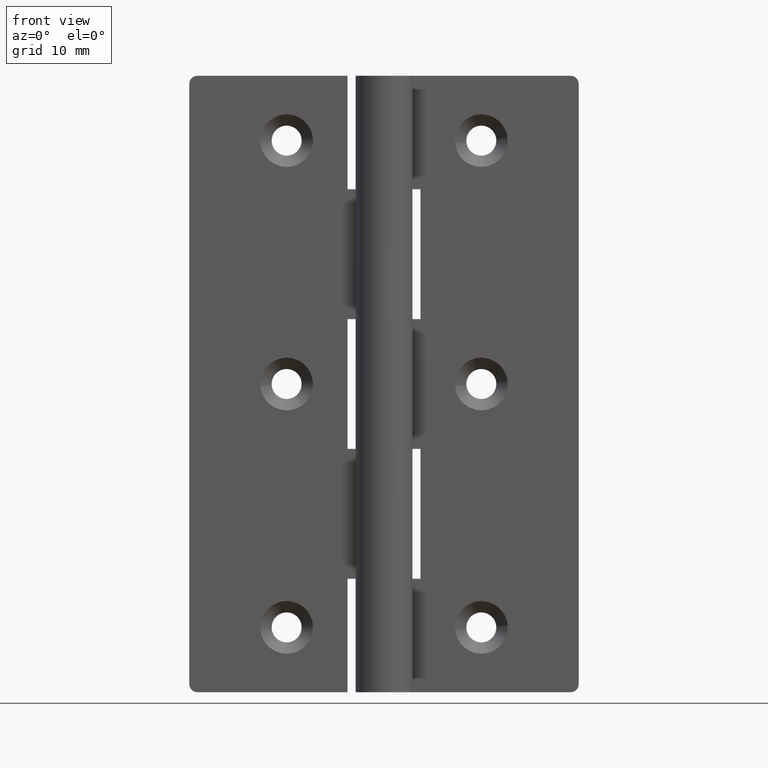
[diagram: clean part render]
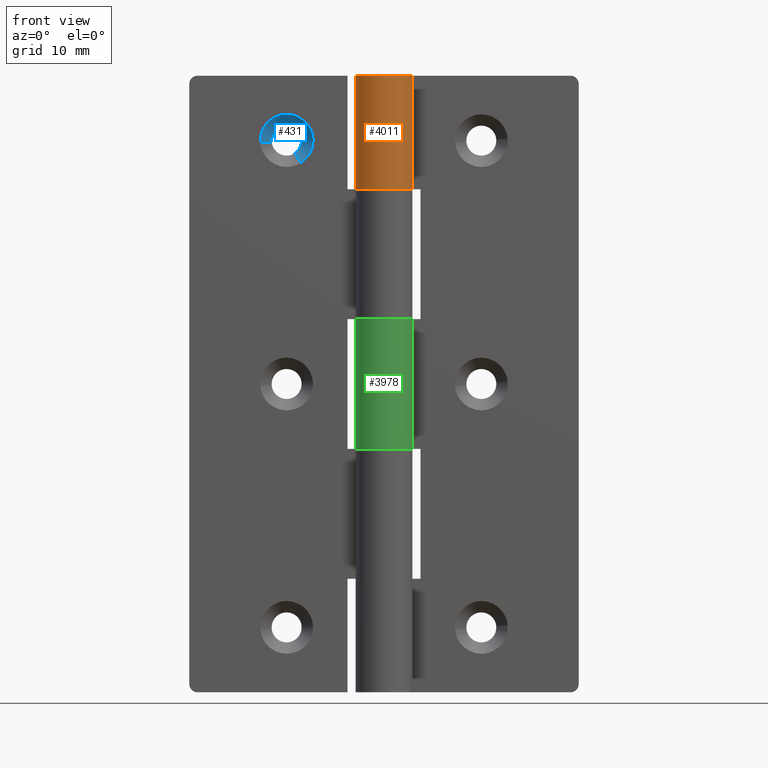
[diagram: same view with three faces highlighted in distinct colors, each labeled with its STEP entity id]
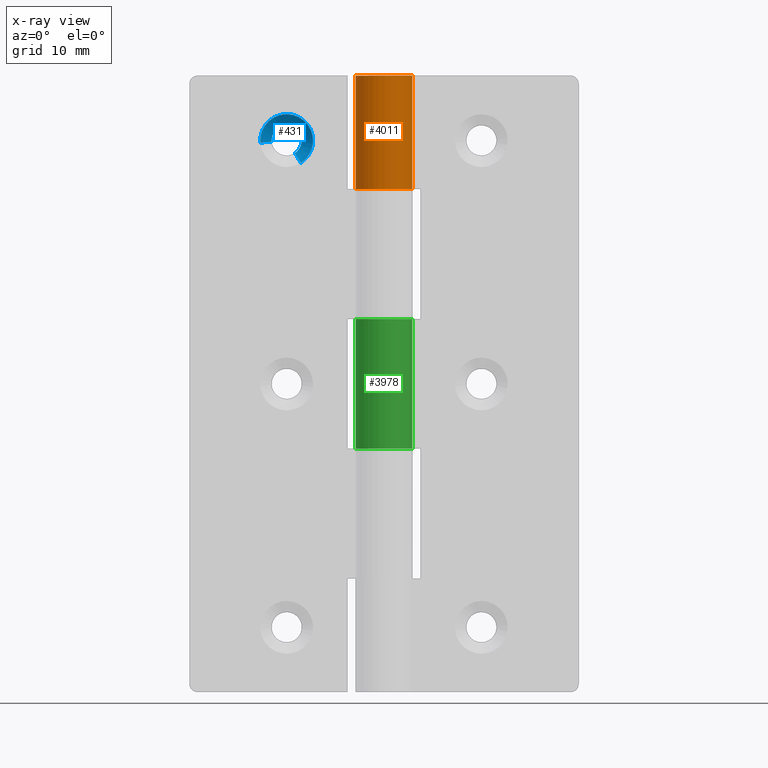
[diagram: x-ray of the same camera — body ghosted, the three highlighted faces saturated]
A machine part, front view with three faces highlighted in distinct colors.
The next image is the same camera in x-ray (body ghosted, the three faces saturated) — at least one of them is partly hidden behind the body in this view.
Their STEP definitions:

[orange] entity #4011 — the highlighted face is a freeform B-spline surface patch.
#3297=CARTESIAN_POINT('',(2.906458325866725,1.950000000000000,62.000008000000101));
#3298=VERTEX_POINT('',#3297);
#3299=CARTESIAN_POINT('',(0.0,3.499999999999950,62.000008000000101));
#3300=VERTEX_POINT('',#3299);
#3301=CARTESIAN_POINT('',(2.906458325866724,1.950000000000000,62.000008000000101));
#3302=CARTESIAN_POINT('',(4.428995672699893,-0.319328896485282,62.000008000000115));
#3303=CARTESIAN_POINT('',(2.596662639363707,-2.346772919848170,62.000008000000101));
#3304=CARTESIAN_POINT('',(0.764329606027518,-4.374216943211061,62.000008000000115));
#3305=CARTESIAN_POINT('',(-1.646966909200061,-3.088284313336452,62.000008000000101));
#3306=CARTESIAN_POINT('',(-4.058263424427639,-1.802351683461843,62.000008000000115));
#3307=CARTESIAN_POINT('',(-3.395511382448716,0.848824158269078,62.000008000000101));
#3308=CARTESIAN_POINT('',(-2.732759340469793,3.500000000000001,62.000008000000115));
#3309=CARTESIAN_POINT('',(0.0,3.500000000000000,62.000008000000101));
#3317=(BOUNDED_CURVE()B_SPLINE_CURVE(2,(#3301,#3302,#3303,#3304,#3305,#3306,#3307,#3308,#3309),.UNSPECIFIED.,.F.,.U.)B_SPLINE_CURVE_WITH_KNOTS((3,2,2,2,3),(0.0,0.250000000000000,0.500000000000000,0.750000000000000,1.0),.UNSPECIFIED.)CURVE()GEOMETRIC_REPRESENTATION_ITEM()RATIONAL_B_SPLINE_CURVE((1.0,0.788200858942973,1.0,0.788200858942973,1.0,0.788200858942973,1.0,0.788200858942973,1.0))REPRESENTATION_ITEM(''));
#3318=EDGE_CURVE('',#3298,#3300,#3317,.T.);
#3673=CARTESIAN_POINT('',(0.0,3.500000000000000,76.000008000000093));
#3674=VERTEX_POINT('',#3673);
#3680=CARTESIAN_POINT('',(2.906458325866725,1.950000000000000,76.000008000000093));
#3681=VERTEX_POINT('',#3680);
#3682=CARTESIAN_POINT('',(2.906458325866724,1.950000000000000,76.000008000000093));
#3683=CARTESIAN_POINT('',(4.428995672699894,-0.319328896485281,76.000008000000093));
#3684=CARTESIAN_POINT('',(2.596662639363708,-2.346772919848170,76.000008000000093));
#3685=CARTESIAN_POINT('',(0.764329606027520,-4.374216943211062,76.000008000000093));
#3686=CARTESIAN_POINT('',(-1.646966909200061,-3.088284313336452,76.000008000000093));
#3687=CARTESIAN_POINT('',(-4.058263424427635,-1.802351683461845,76.000008000000093));
#3688=CARTESIAN_POINT('',(-3.395511382448717,0.848824158269075,76.000008000000093));
#3689=CARTESIAN_POINT('',(-2.732759340469795,3.500000000000000,76.000008000000093));
#3690=CARTESIAN_POINT('',(0.0,3.500000000000000,76.000008000000093));
#3698=(BOUNDED_CURVE()B_SPLINE_CURVE(2,(#3682,#3683,#3684,#3685,#3686,#3687,#3688,#3689,#3690),.UNSPECIFIED.,.F.,.U.)B_SPLINE_CURVE_WITH_KNOTS((3,2,2,2,3),(0.0,0.250000000000000,0.500000000000000,0.750000000000000,1.0),.UNSPECIFIED.)CURVE()GEOMETRIC_REPRESENTATION_ITEM()RATIONAL_B_SPLINE_CURVE((1.0,0.788200858942973,1.0,0.788200858942973,1.0,0.788200858942973,1.0,0.788200858942973,1.0))REPRESENTATION_ITEM(''));
#3699=EDGE_CURVE('',#3681,#3674,#3698,.T.);
#3931=CARTESIAN_POINT('',(2.906458325866725,1.950000000000000,62.000008000000101));
#3932=CARTESIAN_POINT('',(2.906458325866725,1.950000000000000,76.000008000000093));
#3933=QUASI_UNIFORM_CURVE('',1,(#3931,#3932),.UNSPECIFIED.,.F.,.U.);
#3934=EDGE_CURVE('',#3298,#3681,#3933,.T.);
#3979=CARTESIAN_POINT('',(2.849404314247117,2.032460344988288,61.650008000000092));
#3980=CARTESIAN_POINT('',(2.849404314247117,2.032460344988288,76.358758000000108));
#3981=CARTESIAN_POINT('',(5.419869493007912,-1.571198928386221,61.650008000000085));
#3982=CARTESIAN_POINT('',(5.419869493007912,-1.571198928386221,76.358758000000108));
#3983=CARTESIAN_POINT('',(1.320557256320388,-3.241315864395131,61.650008000000092));
#3984=CARTESIAN_POINT('',(1.320557256320388,-3.241315864395131,76.358758000000108));
#3985=CARTESIAN_POINT('',(-2.778754980367134,-4.911432800404040,61.650008000000085));
#3986=CARTESIAN_POINT('',(-2.778754980367134,-4.911432800404040,76.358758000000108));
#3987=CARTESIAN_POINT('',(-3.458487237310264,-0.537462584150751,61.650008000000092));
#3988=CARTESIAN_POINT('',(-3.458487237310264,-0.537462584150751,76.358758000000108));
#3989=CARTESIAN_POINT('',(-4.138219494253393,3.836507632102540,61.650008000000085));
#3990=CARTESIAN_POINT('',(-4.138219494253393,3.836507632102540,76.358758000000108));
#3991=CARTESIAN_POINT('',(0.274606835047458,3.489210668065946,61.650008000000092));
#3992=CARTESIAN_POINT('',(0.274606835047458,3.489210668065946,76.358758000000108));
#4000=(BOUNDED_SURFACE()B_SPLINE_SURFACE(1,2,((#3979,#3981,#3983,#3985,#3987,#3989,#3991),(#3980,#3982,#3984,#3986,#3988,#3990,#3992)),.UNSPECIFIED.,.F.,.F.,.U.)B_SPLINE_SURFACE_WITH_KNOTS((2,2),(3,2,2,3),(0.0,14.708750000000020),(0.0,6.777915536387797,13.555831072775600,20.333746609163391),.UNSPECIFIED.)GEOMETRIC_REPRESENTATION_ITEM()RATIONAL_B_SPLINE_SURFACE(((1.0,0.620235491268260,1.0,0.620235491268260,1.0,0.620235491268260,1.0),(1.0,0.620235491268260,1.0,0.620235491268260,1.0,0.620235491268260,1.0)))REPRESENTATION_ITEM('')SURFACE());
#4001=ORIENTED_EDGE('',*,*,#3318,.F.);
#4002=ORIENTED_EDGE('',*,*,#3934,.T.);
#4003=ORIENTED_EDGE('',*,*,#3699,.T.);
#4004=CARTESIAN_POINT('',(0.0,3.499999999999950,62.000008000000101));
#4005=CARTESIAN_POINT('',(0.0,3.500000000000000,76.000008000000093));
#4006=QUASI_UNIFORM_CURVE('',1,(#4004,#4005),.UNSPECIFIED.,.F.,.U.);
#4007=EDGE_CURVE('',#3300,#3674,#4006,.T.);
#4008=ORIENTED_EDGE('',*,*,#4007,.F.);
#4009=EDGE_LOOP('',(#4001,#4002,#4003,#4008));
#4010=FACE_OUTER_BOUND('',#4009,.T.);
#4011=ADVANCED_FACE('',(#4010),#4000,.T.);

[blue] entity #431 — the highlighted face is a freeform B-spline surface patch.
#295=CARTESIAN_POINT('',(-11.023800809895137,3.434999975562094,66.469890311311190));
#296=CARTESIAN_POINT('',(-10.105093862387937,3.434999975562094,67.056015800043198));
#297=CARTESIAN_POINT('',(-10.190595039274370,3.434999975562094,68.142411258746137));
#298=CARTESIAN_POINT('',(-10.332998298020414,3.434999975562094,69.951816219471780));
#299=CARTESIAN_POINT('',(-12.142403258746040,3.434999975562094,69.809412960725723));
#300=CARTESIAN_POINT('',(-13.951808219471664,3.434999975562094,69.667009701979680));
#301=CARTESIAN_POINT('',(-13.809404960725630,3.434999975562094,67.857604741254050));
#302=CARTESIAN_POINT('',(-10.232689524084954,1.964125000610948,65.229883779437770));
#303=CARTESIAN_POINT('',(-8.569462972492545,1.964125000610948,66.291005041304032));
#304=CARTESIAN_POINT('',(-8.724254256019661,1.964125000610948,68.257814781174829));
#305=CARTESIAN_POINT('',(-8.982061037194395,1.964125000610948,71.533560525155167));
#306=CARTESIAN_POINT('',(-12.257806781174731,1.964125000610948,71.275753743980431));
#307=CARTESIAN_POINT('',(-15.533552525155070,1.964125000610948,71.017946962805681));
#308=CARTESIAN_POINT('',(-15.275745743980339,1.964125000610948,67.742201218825358));
#316=(BOUNDED_SURFACE()B_SPLINE_SURFACE(2,1,((#295,#302),(#296,#303),(#297,#304),(#298,#305),(#299,#306),(#300,#307),(#301,#308)),.UNSPECIFIED.,.F.,.F.,.U.)B_SPLINE_SURFACE_WITH_KNOTS((3,2,2,3),(2,2),(0.0,3.702066850794523,9.146282807845294,14.590498764896060),(0.0,2.080131355843313),.UNSPECIFIED.)GEOMETRIC_REPRESENTATION_ITEM()RATIONAL_B_SPLINE_SURFACE(((0.872532871172386,0.872532871172386),(0.800832611206852,0.800832611206852),(1.0,1.0),(0.707106781186548,0.707106781186548),(1.0,1.0),(0.707106781186548,0.707106781186548),(1.0,1.0)))REPRESENTATION_ITEM('')SURFACE());
#317=CARTESIAN_POINT('',(-10.162932376252440,3.399999976158140,68.218371334327315));
#318=VERTEX_POINT('',#317);
#319=CARTESIAN_POINT('',(-11.004976031722370,3.399999976134143,66.440383909829052));
#320=VERTEX_POINT('',#319);
#321=CARTESIAN_POINT('',(-10.162932376252442,3.399999976158140,68.218371334327315));
#322=CARTESIAN_POINT('',(-10.150000000000000,3.399999976158140,68.109572621570592));
#323=CARTESIAN_POINT('',(-10.150000000000000,3.399999976158140,68.000008000000093));
#324=CARTESIAN_POINT('',(-10.150000000000000,3.399999976158139,66.985849736973350));
#325=CARTESIAN_POINT('',(-11.004976031722371,3.399999976134143,66.440383909829052));
#333=(BOUNDED_CURVE()B_SPLINE_CURVE(2,(#321,#322,#323,#324,#325),.UNSPECIFIED.,.F.,.U.)B_SPLINE_CURVE_WITH_KNOTS((3,2,3),(0.229562473476597,0.250000000000000,0.407950112551356),.UNSPECIFIED.)CURVE()GEOMETRIC_REPRESENTATION_ITEM()RATIONAL_B_SPLINE_CURVE((0.956026754111352,0.976055948287901,1.0,0.814949932491545,0.863729296907862))REPRESENTATION_ITEM(''));
#334=EDGE_CURVE('',#318,#320,#333,.T.);
#335=ORIENTED_EDGE('',*,*,#334,.T.);
#336=CARTESIAN_POINT('',(-10.251984921229161,1.999999999995865,65.260127841230982));
#337=VERTEX_POINT('',#336);
#338=CARTESIAN_POINT('',(-11.004976031722370,3.399999976134143,66.440383909829052));
#339=CARTESIAN_POINT('',(-10.251984921229161,1.999999999995865,65.260127841230982));
#340=QUASI_UNIFORM_CURVE('',1,(#338,#339),.UNSPECIFIED.,.F.,.U.);
#341=EDGE_CURVE('',#320,#337,#340,.T.);
#342=ORIENTED_EDGE('',*,*,#341,.T.);
#343=CARTESIAN_POINT('',(-12.0,2.0,71.250008000000108));
#344=VERTEX_POINT('',#343);
#345=CARTESIAN_POINT('',(-12.0,2.0,71.250008000000108));
#346=CARTESIAN_POINT('',(-8.750000000000000,2.0,71.250008000000108));
#347=CARTESIAN_POINT('',(-8.750000000000000,2.0,68.000008000000093));
#348=CARTESIAN_POINT('',(-8.750000000000000,2.000000000000000,66.218378618057898));
#349=CARTESIAN_POINT('',(-10.251984921229155,1.999999999995865,65.260127841230982));
#357=(BOUNDED_CURVE()B_SPLINE_CURVE(2,(#345,#346,#347,#348,#349),.UNSPECIFIED.,.F.,.U.)B_SPLINE_CURVE_WITH_KNOTS((3,2,3),(0.0,0.250000000000000,0.407950112619940),.UNSPECIFIED.)CURVE()GEOMETRIC_REPRESENTATION_ITEM()RATIONAL_B_SPLINE_CURVE((1.0,0.707106781186547,1.0,0.814949932411194,0.863729296950223))REPRESENTATION_ITEM(''));
#358=EDGE_CURVE('',#344,#337,#357,.T.);
#359=ORIENTED_EDGE('',*,*,#358,.F.);
#360=CARTESIAN_POINT('',(-15.239981334647011,1.999999999963527,67.745015938601981));
#361=VERTEX_POINT('',#360);
#362=CARTESIAN_POINT('',(-15.239981334647009,1.999999999963527,67.745015938601981));
#363=CARTESIAN_POINT('',(-15.250000000000000,2.000000000000000,67.872315151944107));
#364=CARTESIAN_POINT('',(-15.250000000000000,2.0,68.000008000000093));
#365=CARTESIAN_POINT('',(-15.250000000000002,2.0,71.250008000000108));
#366=CARTESIAN_POINT('',(-12.0,2.0,71.250008000000108));
#374=(BOUNDED_CURVE()B_SPLINE_CURVE(2,(#362,#363,#364,#365,#366),.UNSPECIFIED.,.F.,.U.)B_SPLINE_CURVE_WITH_KNOTS((3,2,3),(0.736331300603164,0.750000000000000,1.0),.UNSPECIFIED.)CURVE()GEOMETRIC_REPRESENTATION_ITEM()RATIONAL_B_SPLINE_CURVE((0.969723356110036,0.983986122546669,1.0,0.707106781186547,1.0))REPRESENTATION_ITEM(''));
#375=EDGE_CURVE('',#361,#344,#374,.T.);
#376=ORIENTED_EDGE('',*,*,#375,.F.);
#377=CARTESIAN_POINT('',(-13.844297067456930,3.399999976032066,67.854858671940150));
#378=VERTEX_POINT('',#377);
#379=CARTESIAN_POINT('',(-13.844297067456930,3.399999976032066,67.854858671940150));
#380=CARTESIAN_POINT('',(-15.239981334647011,1.999999999963527,67.745015938601981));
#381=QUASI_UNIFORM_CURVE('',1,(#379,#380),.UNSPECIFIED.,.F.,.U.);
#382=EDGE_CURVE('',#378,#361,#381,.T.);
#383=ORIENTED_EDGE('',*,*,#382,.F.);
#384=CARTESIAN_POINT('',(-13.846549377052710,3.399999976158140,67.887068201407018));
#385=VERTEX_POINT('',#384);
#386=CARTESIAN_POINT('',(-13.844297067456930,3.399999976032066,67.854858671940150));
#387=CARTESIAN_POINT('',(-13.845563766299719,3.399999976158140,67.870953608169884));
#388=CARTESIAN_POINT('',(-13.846549377052707,3.399999976158140,67.887068201407018));
#396=(BOUNDED_CURVE()B_SPLINE_CURVE(2,(#386,#387,#388),.UNSPECIFIED.,.F.,.U.)B_SPLINE_CURVE_WITH_KNOTS((3,3),(0.736331300455507,0.739332962157198),.UNSPECIFIED.)CURVE()GEOMETRIC_REPRESENTATION_ITEM()RATIONAL_B_SPLINE_CURVE((0.969723355801887,0.972855475286945,0.976072041491524))REPRESENTATION_ITEM(''));
#397=EDGE_CURVE('',#378,#385,#396,.T.);
#398=ORIENTED_EDGE('',*,*,#397,.T.);
#399=CARTESIAN_POINT('',(-12.0,3.399999976158140,69.850008000000102));
#400=VERTEX_POINT('',#399);
#401=CARTESIAN_POINT('',(-13.846549377052712,3.399999976158140,67.887068201407018));
#402=CARTESIAN_POINT('',(-13.850000000000005,3.399999976158140,67.943485387442834));
#403=CARTESIAN_POINT('',(-13.850000000000000,3.399999976158140,68.000008000000093));
#404=CARTESIAN_POINT('',(-13.850000000000000,3.399999976158140,69.850008000000102));
#405=CARTESIAN_POINT('',(-12.0,3.399999976158140,69.850008000000102));
#413=(BOUNDED_CURVE()B_SPLINE_CURVE(2,(#401,#402,#403,#404,#405),.UNSPECIFIED.,.F.,.U.)B_SPLINE_CURVE_WITH_KNOTS((3,2,3),(0.739332962157199,0.750000000000000,1.0),.UNSPECIFIED.)CURVE()GEOMETRIC_REPRESENTATION_ITEM()RATIONAL_B_SPLINE_CURVE((0.976072041491525,0.987502787804068,1.0,0.707106781186548,1.0))REPRESENTATION_ITEM(''));
#414=EDGE_CURVE('',#385,#400,#413,.T.);
#415=ORIENTED_EDGE('',*,*,#414,.T.);
#416=CARTESIAN_POINT('',(-12.0,3.399999976158140,69.850008000000102));
#417=CARTESIAN_POINT('',(-10.356877127372275,3.399999976158140,69.850008000000088));
#418=CARTESIAN_POINT('',(-10.162932376252442,3.399999976158140,68.218371334327315));
#426=(BOUNDED_CURVE()B_SPLINE_CURVE(2,(#416,#417,#418),.UNSPECIFIED.,.F.,.U.)B_SPLINE_CURVE_WITH_KNOTS((3,3),(0.0,0.229562473476597),.UNSPECIFIED.)CURVE()GEOMETRIC_REPRESENTATION_ITEM()RATIONAL_B_SPLINE_CURVE((1.0,0.731050832898647,0.956026754111352))REPRESENTATION_ITEM(''));
#427=EDGE_CURVE('',#400,#318,#426,.T.);
#428=ORIENTED_EDGE('',*,*,#427,.T.);
#429=EDGE_LOOP('',(#335,#342,#359,#376,#383,#398,#415,#428));
#430=FACE_OUTER_BOUND('',#429,.T.);
#431=ADVANCED_FACE('',(#430),#316,.F.);

[green] entity #3978 — the highlighted face is a freeform B-spline surface patch.
#3228=CARTESIAN_POINT('',(0.0,3.499999999999950,46.000008000000101));
#3229=VERTEX_POINT('',#3228);
#3235=CARTESIAN_POINT('',(2.906458325866725,1.950000000000000,46.000008000000200));
#3236=VERTEX_POINT('',#3235);
#3237=CARTESIAN_POINT('',(0.0,3.499999999999950,46.000008000000101));
#3238=CARTESIAN_POINT('',(-2.732759340469792,3.500000000000000,46.000008000000200));
#3239=CARTESIAN_POINT('',(-3.395511382448716,0.848824158269080,46.000008000000200));
#3240=CARTESIAN_POINT('',(-4.058263424427640,-1.802351683461841,46.000008000000200));
#3241=CARTESIAN_POINT('',(-1.646966909200063,-3.088284313336451,46.000008000000200));
#3242=CARTESIAN_POINT('',(0.764329606027517,-4.374216943211062,46.000008000000200));
#3243=CARTESIAN_POINT('',(2.596662639363706,-2.346772919848171,46.000008000000200));
#3244=CARTESIAN_POINT('',(4.428995672699894,-0.319328896485283,46.000008000000200));
#3245=CARTESIAN_POINT('',(2.906458325866725,1.949999999999999,46.000008000000200));
#3253=(BOUNDED_CURVE()B_SPLINE_CURVE(2,(#3237,#3238,#3239,#3240,#3241,#3242,#3243,#3244,#3245),.UNSPECIFIED.,.F.,.U.)B_SPLINE_CURVE_WITH_KNOTS((3,2,2,2,3),(0.0,0.250000000000000,0.500000000000000,0.750000000000000,1.0),.UNSPECIFIED.)CURVE()GEOMETRIC_REPRESENTATION_ITEM()RATIONAL_B_SPLINE_CURVE((1.0,0.788200858942973,1.0,0.788200858942973,1.0,0.788200858942973,1.0,0.788200858942973,1.0))REPRESENTATION_ITEM(''));
#3254=EDGE_CURVE('',#3229,#3236,#3253,.T.);
#3473=CARTESIAN_POINT('',(2.906458325866725,1.950000000000000,30.000008000000150));
#3474=VERTEX_POINT('',#3473);
#3475=CARTESIAN_POINT('',(0.0,3.499999999999950,30.000008000000101));
#3476=VERTEX_POINT('',#3475);
#3477=CARTESIAN_POINT('',(2.906458325866724,1.950000000000000,30.000008000000150));
#3478=CARTESIAN_POINT('',(4.428995672699893,-0.319328896485282,30.000008000000157));
#3479=CARTESIAN_POINT('',(2.596662639363707,-2.346772919848170,30.000008000000150));
#3480=CARTESIAN_POINT('',(0.764329606027518,-4.374216943211061,30.000008000000157));
#3481=CARTESIAN_POINT('',(-1.646966909200061,-3.088284313336452,30.000008000000150));
#3482=CARTESIAN_POINT('',(-4.058263424427639,-1.802351683461843,30.000008000000157));
#3483=CARTESIAN_POINT('',(-3.395511382448716,0.848824158269078,30.000008000000150));
#3484=CARTESIAN_POINT('',(-2.732759340469793,3.500000000000001,30.000008000000157));
#3485=CARTESIAN_POINT('',(0.0,3.499999999999950,30.000008000000101));
#3493=(BOUNDED_CURVE()B_SPLINE_CURVE(2,(#3477,#3478,#3479,#3480,#3481,#3482,#3483,#3484,#3485),.UNSPECIFIED.,.F.,.U.)B_SPLINE_CURVE_WITH_KNOTS((3,2,2,2,3),(0.0,0.250000000000000,0.500000000000000,0.750000000000000,1.0),.UNSPECIFIED.)CURVE()GEOMETRIC_REPRESENTATION_ITEM()RATIONAL_B_SPLINE_CURVE((1.0,0.788200858942973,1.0,0.788200858942973,1.0,0.788200858942973,1.0,0.788200858942973,1.0))REPRESENTATION_ITEM(''));
#3494=EDGE_CURVE('',#3474,#3476,#3493,.T.);
#3917=CARTESIAN_POINT('',(2.906458325866725,1.950000000000000,30.000008000000150));
#3918=CARTESIAN_POINT('',(2.906458325866725,1.950000000000000,46.000008000000200));
#3919=QUASI_UNIFORM_CURVE('',1,(#3917,#3918),.UNSPECIFIED.,.F.,.U.);
#3920=EDGE_CURVE('',#3474,#3236,#3919,.T.);
#3946=CARTESIAN_POINT('',(2.849404314247117,2.032460344988288,29.600008000000098));
#3947=CARTESIAN_POINT('',(2.849404314247117,2.032460344988288,46.410008000000211));
#3948=CARTESIAN_POINT('',(5.419869493007912,-1.571198928386221,29.600008000000098));
#3949=CARTESIAN_POINT('',(5.419869493007912,-1.571198928386221,46.410008000000211));
#3950=CARTESIAN_POINT('',(1.320557256320388,-3.241315864395131,29.600008000000098));
#3951=CARTESIAN_POINT('',(1.320557256320388,-3.241315864395131,46.410008000000211));
#3952=CARTESIAN_POINT('',(-2.778754980367134,-4.911432800404040,29.600008000000098));
#3953=CARTESIAN_POINT('',(-2.778754980367134,-4.911432800404040,46.410008000000211));
#3954=CARTESIAN_POINT('',(-3.458487237310264,-0.537462584150751,29.600008000000098));
#3955=CARTESIAN_POINT('',(-3.458487237310264,-0.537462584150751,46.410008000000211));
#3956=CARTESIAN_POINT('',(-4.138219494253393,3.836507632102540,29.600008000000098));
#3957=CARTESIAN_POINT('',(-4.138219494253393,3.836507632102540,46.410008000000211));
#3958=CARTESIAN_POINT('',(0.274606835047458,3.489210668065946,29.600008000000098));
#3959=CARTESIAN_POINT('',(0.274606835047458,3.489210668065946,46.410008000000211));
#3967=(BOUNDED_SURFACE()B_SPLINE_SURFACE(1,2,((#3946,#3948,#3950,#3952,#3954,#3956,#3958),(#3947,#3949,#3951,#3953,#3955,#3957,#3959)),.UNSPECIFIED.,.F.,.F.,.U.)B_SPLINE_SURFACE_WITH_KNOTS((2,2),(3,2,2,3),(0.0,16.810000000000109),(0.0,6.777915536387797,13.555831072775600,20.333746609163391),.UNSPECIFIED.)GEOMETRIC_REPRESENTATION_ITEM()RATIONAL_B_SPLINE_SURFACE(((1.0,0.620235491268260,1.0,0.620235491268260,1.0,0.620235491268260,1.0),(1.0,0.620235491268260,1.0,0.620235491268260,1.0,0.620235491268260,1.0)))REPRESENTATION_ITEM('')SURFACE());
#3968=ORIENTED_EDGE('',*,*,#3254,.F.);
#3969=CARTESIAN_POINT('',(0.0,3.499999999999950,30.000008000000101));
#3970=CARTESIAN_POINT('',(0.0,3.499999999999950,46.000008000000101));
#3971=QUASI_UNIFORM_CURVE('',1,(#3969,#3970),.UNSPECIFIED.,.F.,.U.);
#3972=EDGE_CURVE('',#3476,#3229,#3971,.T.);
#3973=ORIENTED_EDGE('',*,*,#3972,.F.);
#3974=ORIENTED_EDGE('',*,*,#3494,.F.);
#3975=ORIENTED_EDGE('',*,*,#3920,.T.);
#3976=EDGE_LOOP('',(#3968,#3973,#3974,#3975));
#3977=FACE_OUTER_BOUND('',#3976,.T.);
#3978=ADVANCED_FACE('',(#3977),#3967,.T.);